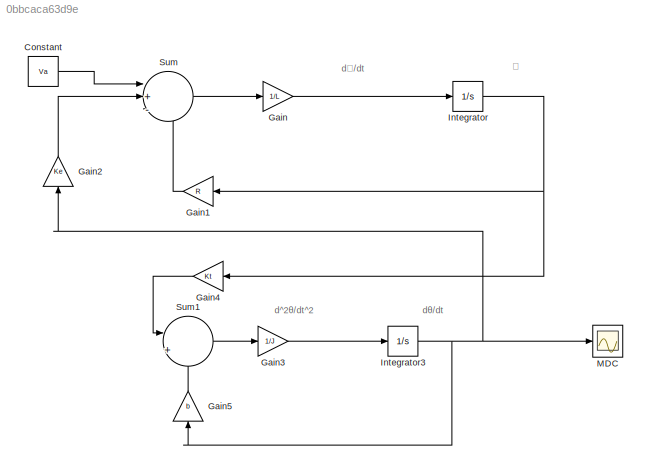
MODEL slx_0bbcaca63d9e
KIND model
CONFIG AbsTol = auto
CONFIG EnableMultiTasking = off
CONFIG FixedStep = auto
CONFIG InitFcn = R = 2;\nKt = 0.01;\nb = 0.0012;\nL = 0.023;\nKe = 0.01;\nJ = 0.001;\nVa = 5;\n\n
CONFIG MaxStep = auto
CONFIG MinStep = auto
CONFIG RelTol = 1e-3
CONFIG SampleTimeConstraint = Unconstrained
CONFIG SolverName = VariableStepAuto
CONFIG StartTime = 0.0
CONFIG StopTime = 10.0
BLOCK [Constant] Constant
  Value = Va
BLOCK [Gain] Gain
  Gain = 1/L
BLOCK [Gain] Gain1
  Gain = R
  NameLocation = top
BLOCK [Gain] Gain2
  Gain = Ke
  NameLocation = right
BLOCK [Gain] Gain3
  Gain = 1/J
BLOCK [Gain] Gain4
  Gain = Kt
  NameLocation = top
BLOCK [Gain] Gain5
  Gain = b
  NameLocation = right
BLOCK [Integrator] Integrator
BLOCK [Integrator] Integrator3
BLOCK [Scope] MDC
  Floating = off
  NumInputPorts = 1
  ScopeSpecificationString = Simulink.scopes.TimeScopeBlockCfg('CurrentConfiguration', extmgr.ConfigurationSet(extmgr.Configuration('Core','General UI',true),extmgr.Configuration('Core','Source UI',true),extmgr.Configuration('Sources','WiredSimulink',true,'DataLoggingVariableName','ScopeData1'),extmgr.Configuration('Visuals','Time Domain',true,'SerializedDisplays',{struct('MinYLimReal','-2.50002','MaxYLimReal','22.50022','YLa...<+1492ch>
BLOCK [Sum] Sum
  Inputs = |+--
BLOCK [Sum] Sum1
  Inputs = |+-
ANNOTATION (root): d^2θ/dt^2
ANNOTATION (root): dθ/dt
ANNOTATION (root): d𝓲/dt
ANNOTATION (root): 𝓲
LINE Constant:1 -> Sum:1
LINE Gain1:1 -> Sum:3
LINE Gain2:1 -> Sum:2
LINE Gain3:1 -> Integrator3:1
LINE Gain4:1 -> Sum1:1
LINE Gain5:1 -> Sum1:2
LINE Gain:1 -> Integrator:1
NET Integrator3:1 -> Gain2:1, Gain5:1, MDC:1
NET Integrator:1 -> Gain1:1, Gain4:1
LINE Sum1:1 -> Gain3:1
LINE Sum:1 -> Gain:1
note: NET lines group one-source signal fan-out (src -> all destinations, sorted); 1:1 wires keep LINE
